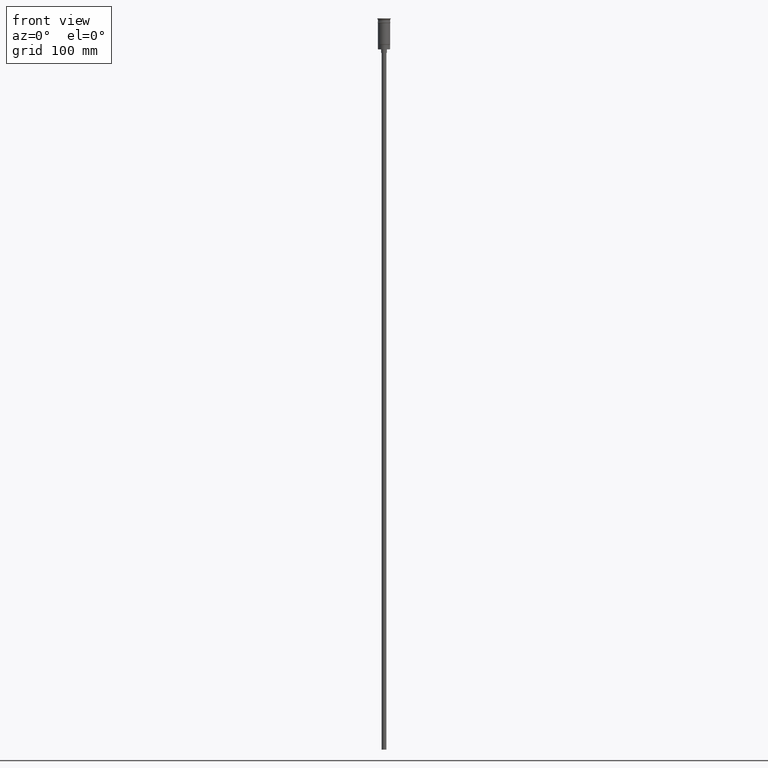
[diagram: clean part render]
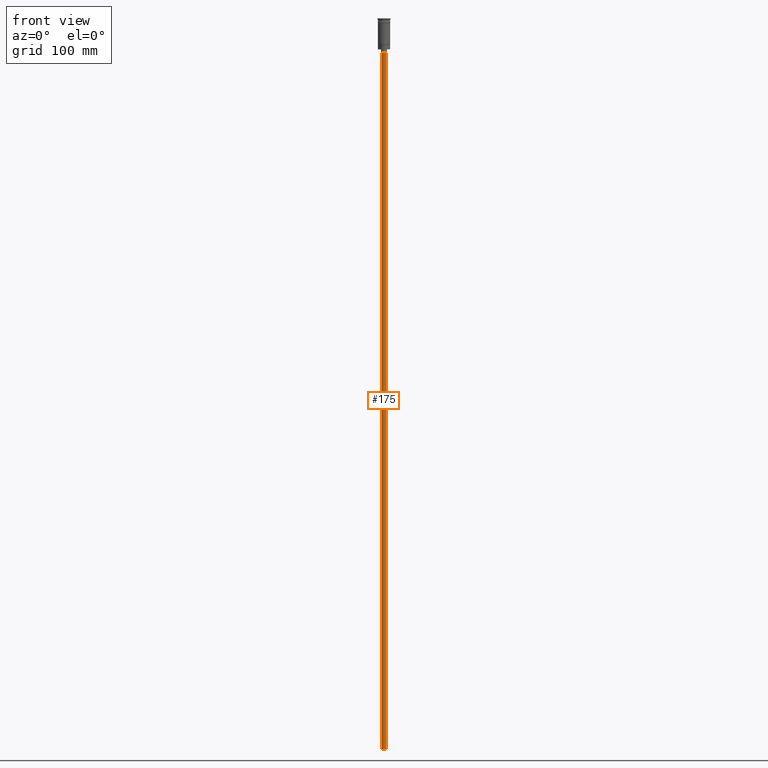
[diagram: same view with one face highlighted and labeled with its STEP entity id]
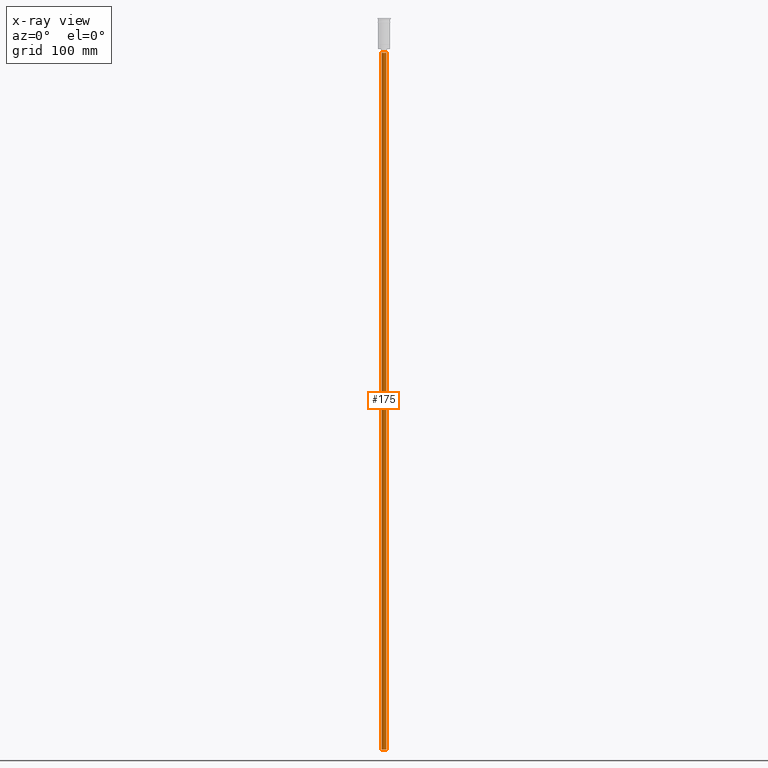
[diagram: x-ray of the same camera — body ghosted, the highlighted face saturated]
A machine part, front view. The second image highlights one B-rep face of the part: STEP entity #175.
The next image is the same camera in x-ray: the body ghosted, the highlighted face saturated — about 0% of this face is hidden behind the body in this view.
In plain terms, the highlighted cylindrical surface (edge-blend (fillet) strip) has radius 2 mm, axis along (-0, -0, 1).
Its self-contained STEP definition (entity closure, byte-faithful):
#175 = ADVANCED_FACE ( 'NONE', ( #254 ), #1009, .T. ) ;
#201 = CARTESIAN_POINT ( 'NONE',  ( 0.000000000000000000, 0.000000000000000000, -29.50000000000000000 ) ) ;
#211 = CIRCLE ( 'NONE', #1263, 2.000000000000000000 ) ;
#226 = DIRECTION ( 'NONE',  ( 0.000000000000000000, 0.000000000000000000, -1.000000000000000000 ) ) ;
#227 = VERTEX_POINT ( 'NONE', #1456 ) ;
#235 = EDGE_LOOP ( 'NONE', ( #353, #270, #734, #674 ) ) ;
#254 = FACE_OUTER_BOUND ( 'NONE', #235, .T. ) ;
#268 = DIRECTION ( 'NONE',  ( -0.000000000000000000, -0.000000000000000000, 1.000000000000000000 ) ) ;
#270 = ORIENTED_EDGE ( 'NONE', *, *, #1046, .F. ) ;
#280 = LINE ( 'NONE', #1389, #1503 ) ;
#294 = VERTEX_POINT ( 'NONE', #406 ) ;
#340 = AXIS2_PLACEMENT_3D ( 'NONE', #1233, #226, #1222 ) ;
#353 = ORIENTED_EDGE ( 'NONE', *, *, #523, .F. ) ;
#390 = DIRECTION ( 'NONE',  ( -0.000000000000000000, -0.000000000000000000, 1.000000000000000000 ) ) ;
#406 = CARTESIAN_POINT ( 'NONE',  ( 2.000000000000000000, 0.000000000000000000, -626.5000000000000000 ) ) ;
#460 = DIRECTION ( 'NONE',  ( 0.000000000000000000, 0.000000000000000000, -1.000000000000000000 ) ) ;
#515 = EDGE_CURVE ( 'NONE', #294, #866, #280, .T. ) ;
#523 = EDGE_CURVE ( 'NONE', #1325, #227, #653, .T. ) ;
#599 = EDGE_CURVE ( 'NONE', #866, #227, #211, .T. ) ;
#653 = LINE ( 'NONE', #1147, #1589 ) ;
#674 = ORIENTED_EDGE ( 'NONE', *, *, #599, .T. ) ;
#734 = ORIENTED_EDGE ( 'NONE', *, *, #515, .T. ) ;
#832 = CIRCLE ( 'NONE', #340, 2.000000000000000000 ) ;
#866 = VERTEX_POINT ( 'NONE', #1573 ) ;
#980 = CARTESIAN_POINT ( 'NONE',  ( 0.000000000000000000, 0.000000000000000000, -626.5000000000000000 ) ) ;
#1009 = CYLINDRICAL_SURFACE ( 'NONE', #1587, 2.000000000000000000 ) ;
#1046 = EDGE_CURVE ( 'NONE', #294, #1325, #832, .T. ) ;
#1137 = DIRECTION ( 'NONE',  ( 1.000000000000000000, 0.000000000000000000, 0.000000000000000000 ) ) ;
#1147 = CARTESIAN_POINT ( 'NONE',  ( -2.000000000000000000, 2.449293598294706414E-16, -626.5000000000000000 ) ) ;
#1198 = CARTESIAN_POINT ( 'NONE',  ( -2.000000000000000000, 2.449293598294706414E-16, -626.5000000000000000 ) ) ;
#1222 = DIRECTION ( 'NONE',  ( -1.000000000000000000, 0.000000000000000000, 0.000000000000000000 ) ) ;
#1233 = CARTESIAN_POINT ( 'NONE',  ( 0.000000000000000000, 0.000000000000000000, -626.5000000000000000 ) ) ;
#1239 = DIRECTION ( 'NONE',  ( -1.000000000000000000, 0.000000000000000000, 0.000000000000000000 ) ) ;
#1263 = AXIS2_PLACEMENT_3D ( 'NONE', #201, #460, #1239 ) ;
#1325 = VERTEX_POINT ( 'NONE', #1198 ) ;
#1389 = CARTESIAN_POINT ( 'NONE',  ( 2.000000000000000000, 0.000000000000000000, -626.5000000000000000 ) ) ;
#1399 = DIRECTION ( 'NONE',  ( -0.000000000000000000, -0.000000000000000000, 1.000000000000000000 ) ) ;
#1456 = CARTESIAN_POINT ( 'NONE',  ( -2.000000000000000000, 2.449293598294706414E-16, -29.50000000000000000 ) ) ;
#1503 = VECTOR ( 'NONE', #1399, 1000.000000000000000 ) ;
#1573 = CARTESIAN_POINT ( 'NONE',  ( 2.000000000000000000, 0.000000000000000000, -29.50000000000000000 ) ) ;
#1587 = AXIS2_PLACEMENT_3D ( 'NONE', #980, #390, #1137 ) ;
#1589 = VECTOR ( 'NONE', #268, 1000.000000000000000 ) ;